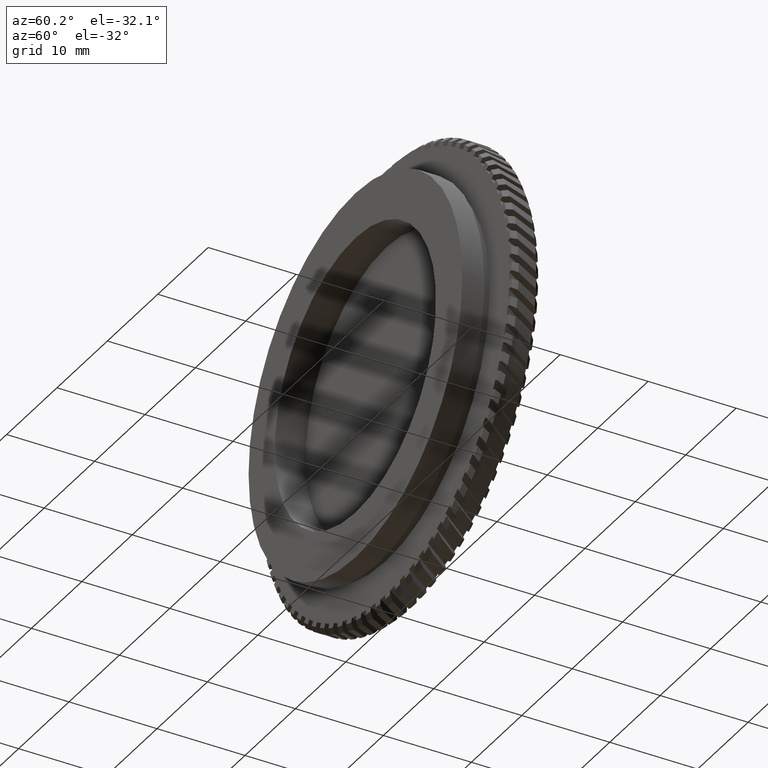
[diagram: clean part render]
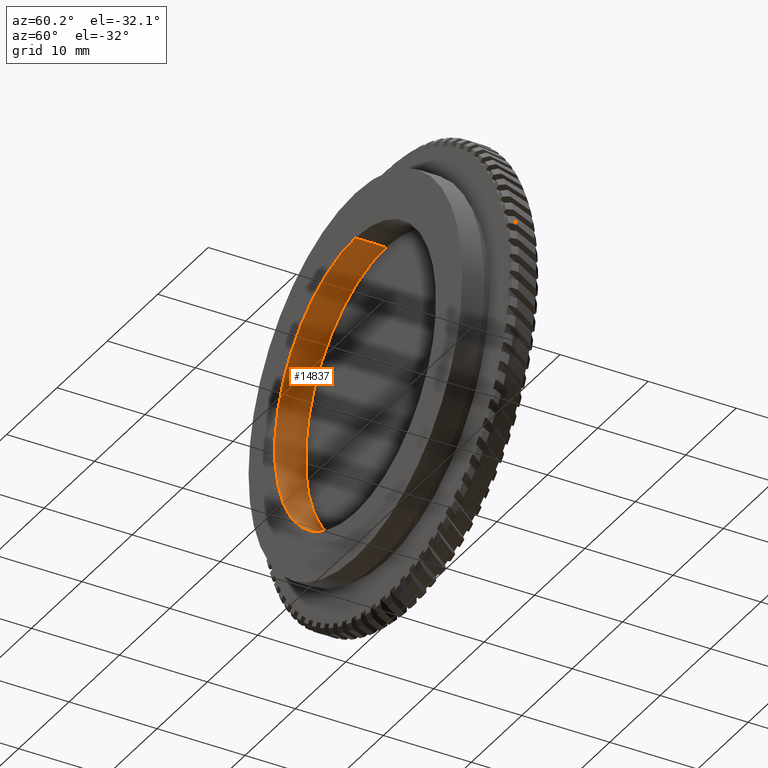
[diagram: same view with one face highlighted and labeled with its STEP entity id]
A machine part, auxiliary view. The second image highlights one B-rep face of the part: STEP entity #14837.
In plain terms, the highlighted cylindrical surface (partial cylindrical patch) has radius 16 mm, axis along (-0, 1, -0).
Its self-contained STEP definition (entity closure, byte-faithful):
#600 = DIRECTION ( 'NONE',  ( 0.0000000000000000000, 0.0000000000000000000, 1.000000000000000000 ) ) ;
#864 = DIRECTION ( 'NONE',  ( 0.0000000000000000000, 0.0000000000000000000, 1.000000000000000000 ) ) ;
#879 = VERTEX_POINT ( 'NONE', #13279 ) ;
#945 = ORIENTED_EDGE ( 'NONE', *, *, #3539, .F. ) ;
#1062 = CARTESIAN_POINT ( 'NONE',  ( 1.959434878635766300E-015, 18.87125740523061500, -16.00000000000000700 ) ) ;
#2178 = CIRCLE ( 'NONE', #17009, 16.00000000000000700 ) ;
#2362 = AXIS2_PLACEMENT_3D ( 'NONE', #2476, #8543, #864 ) ;
#2476 = CARTESIAN_POINT ( 'NONE',  ( 0.0000000000000000000, 66.62876213592232900, 0.0000000000000000000 ) ) ;
#3391 = VERTEX_POINT ( 'NONE', #1062 ) ;
#3539 = EDGE_CURVE ( 'NONE', #10008, #5459, #2178, .T. ) ;
#3737 = EDGE_CURVE ( 'NONE', #10008, #3391, #18507, .T. ) ;
#4131 = VECTOR ( 'NONE', #17702, 1000.000000000000000 ) ;
#4298 = EDGE_LOOP ( 'NONE', ( #945, #11419, #5081, #13814 ) ) ;
#4727 = LINE ( 'NONE', #8971, #18833 ) ;
#5081 = ORIENTED_EDGE ( 'NONE', *, *, #10730, .T. ) ;
#5459 = VERTEX_POINT ( 'NONE', #19184 ) ;
#6039 = AXIS2_PLACEMENT_3D ( 'NONE', #13290, #19484, #600 ) ;
#8543 = DIRECTION ( 'NONE',  ( -0.0000000000000000000, 1.000000000000000000, -0.0000000000000000000 ) ) ;
#8971 = CARTESIAN_POINT ( 'NONE',  ( 0.0000000000000000000, 66.62876213592232900, 16.00000000000000700 ) ) ;
#10008 = VERTEX_POINT ( 'NONE', #12209 ) ;
#10017 = FACE_OUTER_BOUND ( 'NONE', #4298, .T. ) ;
#10730 = EDGE_CURVE ( 'NONE', #3391, #879, #12490, .T. ) ;
#10915 = DIRECTION ( 'NONE',  ( -0.0000000000000000000, 1.000000000000000000, -0.0000000000000000000 ) ) ;
#11419 = ORIENTED_EDGE ( 'NONE', *, *, #3737, .T. ) ;
#12209 = CARTESIAN_POINT ( 'NONE',  ( 1.959434878635766300E-015, 15.37125740523061900, -16.00000000000000700 ) ) ;
#12490 = CIRCLE ( 'NONE', #6039, 16.00000000000000700 ) ;
#13191 = CARTESIAN_POINT ( 'NONE',  ( 1.959434878635766300E-015, 66.62876213592232900, -16.00000000000000700 ) ) ;
#13279 = CARTESIAN_POINT ( 'NONE',  ( 0.0000000000000000000, 18.87125740523061500, 16.00000000000000700 ) ) ;
#13290 = CARTESIAN_POINT ( 'NONE',  ( 0.0000000000000000000, 18.87125740523061500, 0.0000000000000000000 ) ) ;
#13461 = DIRECTION ( 'NONE',  ( -0.0000000000000000000, 1.000000000000000000, -0.0000000000000000000 ) ) ;
#13601 = EDGE_CURVE ( 'NONE', #5459, #879, #4727, .T. ) ;
#13814 = ORIENTED_EDGE ( 'NONE', *, *, #13601, .F. ) ;
#14837 = ADVANCED_FACE ( 'NONE', ( #10017 ), #15649, .F. ) ;
#15649 = CYLINDRICAL_SURFACE ( 'NONE', #2362, 16.00000000000000700 ) ;
#17009 = AXIS2_PLACEMENT_3D ( 'NONE', #17168, #10915, #18535 ) ;
#17168 = CARTESIAN_POINT ( 'NONE',  ( 0.0000000000000000000, 15.37125740523061900, 0.0000000000000000000 ) ) ;
#17702 = DIRECTION ( 'NONE',  ( -0.0000000000000000000, 1.000000000000000000, -0.0000000000000000000 ) ) ;
#18507 = LINE ( 'NONE', #13191, #4131 ) ;
#18535 = DIRECTION ( 'NONE',  ( 0.0000000000000000000, 0.0000000000000000000, 1.000000000000000000 ) ) ;
#18833 = VECTOR ( 'NONE', #13461, 1000.000000000000000 ) ;
#19184 = CARTESIAN_POINT ( 'NONE',  ( 0.0000000000000000000, 15.37125740523061900, 16.00000000000000700 ) ) ;
#19484 = DIRECTION ( 'NONE',  ( -0.0000000000000000000, 1.000000000000000000, -0.0000000000000000000 ) ) ;